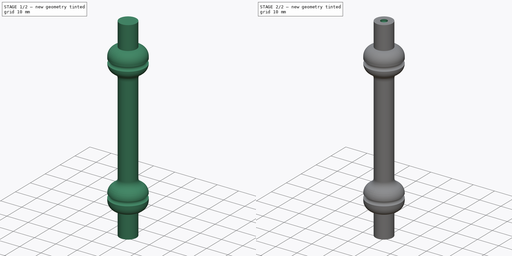
[diagram: build sequence overview — one tinted view per stage of 2, left to right]
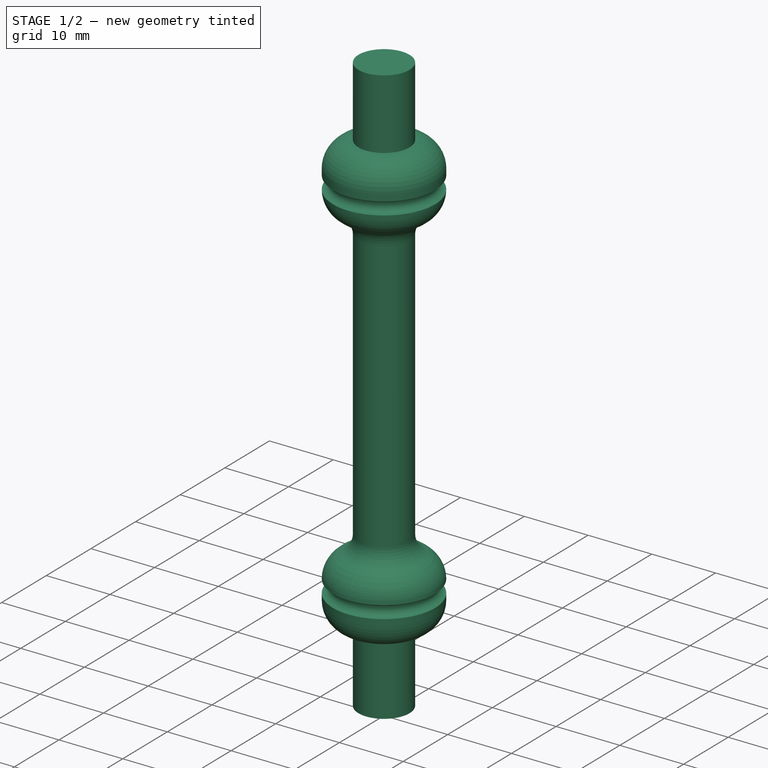
[diagram: stage 1 of 2 — iso view after this stage's code; geometry added in this stage tinted green]
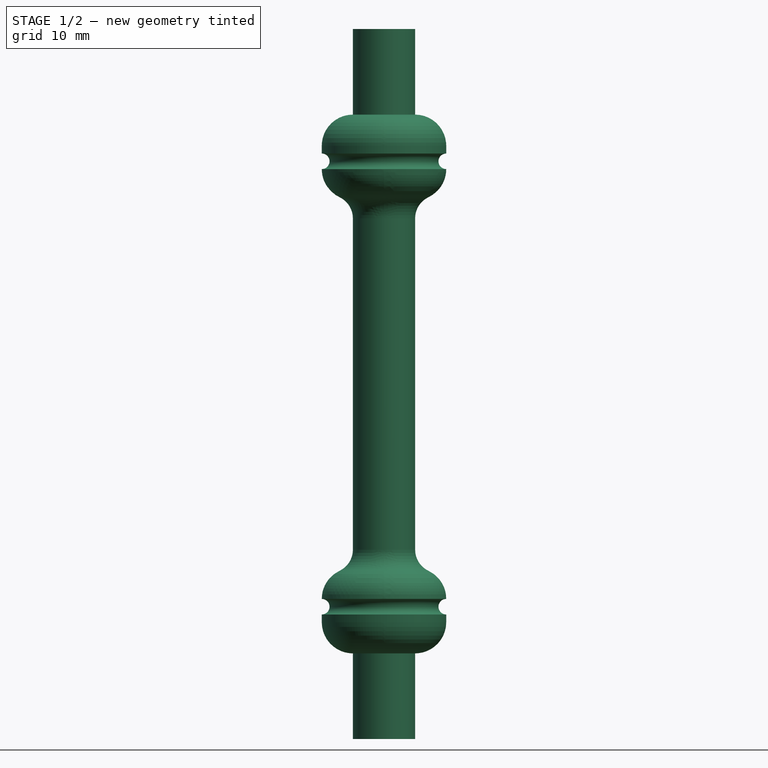
[diagram: stage 1 of 2 — front view after this stage's code; geometry added in this stage tinted green]
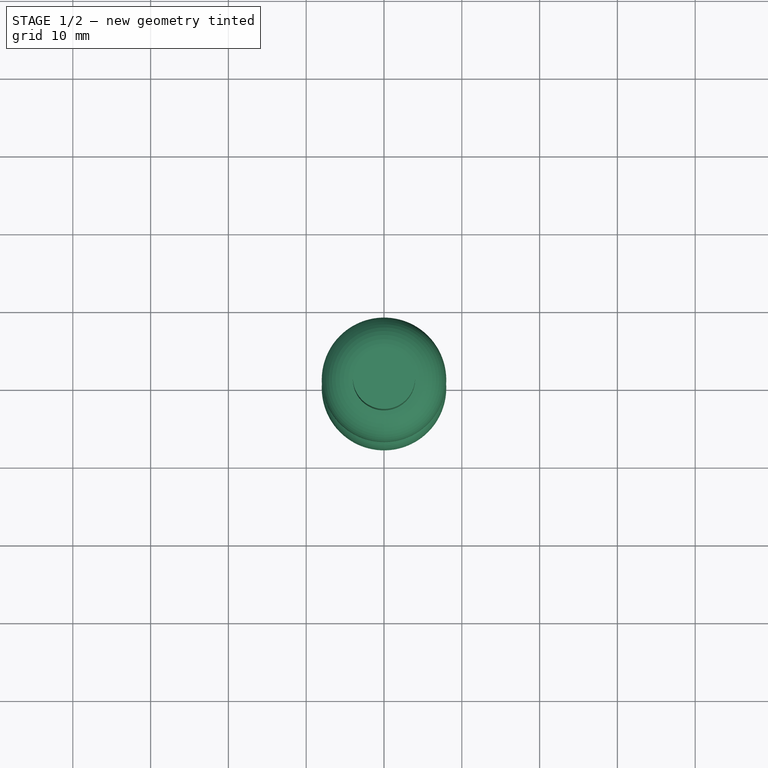
[diagram: stage 1 of 2 — top view after this stage's code; geometry added in this stage tinted green]
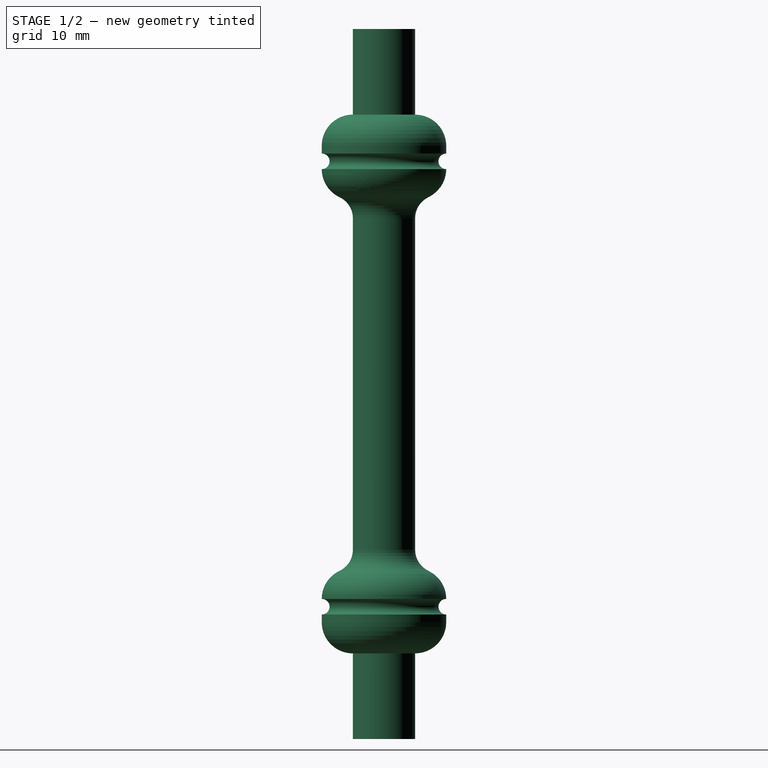
[diagram: stage 1 of 2 — right view after this stage's code; geometry added in this stage tinted green]
FCSTD DOCUMENT  (FreeCAD 0.19R20909 (Git))
Label: roller3bign
License: All rights reserved
LicenseURL: http://en.wikipedia.org/wiki/All_rights_reserved
objects: Sketcher::SketchObject×2, PartDesign::Revolution×1, PartDesign::Fillet×1, PartDesign::Pocket×1, PartDesign::Body×1
note: 9 computed .brp shape members not serialized (recipe doc carries the construction recipe); baked Part::Feature solids carry a one-line shape summary decoded from their .brp

FEATURE [Sketcher::SketchObject] Sketch
  MapMode = 5
  Placement = pos=(0,0,0) rot=(0.57735,0.57735,0.57735;2.0944rad)
  Support = -> [YZ_Plane]
  sketch-geometry (14):
    g0: LineSegment StartX=0 StartY=0 StartZ=0 EndX=-4 EndY=0 EndZ=0
    g1: LineSegment StartX=-4 StartY=0 StartZ=0 EndX=-4 EndY=11 EndZ=0
    g2: ArcOfCircle CenterX=-8 CenterY=17 CenterZ=0 NormalX=0 NormalY=0 NormalZ=1 AngleXU=0 Radius=1 StartAngle=4.71239 EndAngle=7.85398
    g3: ArcOfCircle CenterX=-4 CenterY=18 CenterZ=0 NormalX=0 NormalY=0 NormalZ=1 AngleXU=0 Radius=4 StartAngle=1.5708 EndAngle=3.14159
    g4: LineSegment StartX=-4 StartY=22 StartZ=0 EndX=-4 EndY=69.25 EndZ=0
    g5: LineSegment StartX=0 StartY=91.25 StartZ=0 EndX=-4 EndY=91.25 EndZ=0
    g6: LineSegment StartX=-4 StartY=91.25 StartZ=0 EndX=-4 EndY=80.25 EndZ=0
    g7: ArcOfCircle CenterX=-8 CenterY=74.25 CenterZ=0 NormalX=0 NormalY=0 NormalZ=1 AngleXU=0 Radius=1 StartAngle=4.71239 EndAngle=7.85398
    g8: ArcOfCircle CenterX=-4 CenterY=73.25 CenterZ=0 NormalX=0 NormalY=0 NormalZ=1 AngleXU=0 Radius=4 StartAngle=3.14159 EndAngle=4.71239
    g9: LineSegment StartX=0 StartY=0 StartZ=0 EndX=0 EndY=91.25 EndZ=0
    g10: LineSegment StartX=-8 StartY=75.25 StartZ=0 EndX=-8 EndY=76.25 EndZ=0
    g11: ArcOfCircle CenterX=-4 CenterY=76.25 CenterZ=0 NormalX=0 NormalY=0 NormalZ=1 AngleXU=0 Radius=4 StartAngle=1.5708 EndAngle=3.14159
    g12: LineSegment StartX=-8 StartY=16 StartZ=0 EndX=-8 EndY=15 EndZ=0
    g13: ArcOfCircle CenterX=-4 CenterY=15 CenterZ=0 NormalX=0 NormalY=0 NormalZ=1 AngleXU=0 Radius=4 StartAngle=3.14159 EndAngle=4.71239
  constraints (45):
    c: Coincident(g0,g1)
    c: Perpendicular(g2,g3) = 1.5708
    c: Angle(g3) = 1.5708
    c: DistanceX(g0,g0) = 4
    c: DistanceY(g1,g1) = 11
    c: Coincident(g0,g-1)
    c: Perpendicular(g1,g0)
    c: Radius(g3) = 4
    c: Radius(g2) = 1
    c: DistanceY(g4,g4) = 47.25
    c: Vertical(g4,g3)
    c: Coincident(g4,g3)
    c: Coincident(g5,g6)
    c: Perpendicular(g7,g8) = 4.71239
    c: Angle(g8) = 1.5708
    c: DistanceX(g5,g5) = 4
    c: Perpendicular(g-2,g5)
    c: Vertical(g8,g8)
    c: Radius(g7) = 1
    c: Radius(g8) = 4
    c: Coincident(g8,g4)
    c: DistanceY(g6,g6) = 11
    c: Vertical(g7,g7)
    c: Vertical(g1)
    c: Coincident(g9,g5)
    c: Coincident(g9,g0)
    c: Vertical(g10)
    c: Angle(g11) = 1.5708
    c: Coincident(g6,g11)
    c: Vertical(g4,g6)
    c: Coincident(g10,g11)
    c: Coincident(g10,g7)
    c: DistanceY(g10,g10) = 1
    c: Radius(g11) = 4
    c: PointOnObject(g5,g-2)
    c: Vertical(g12)
    c: Coincident(g12,g2)
    c: DistanceY(g12,g12) = 1
    c: Radius(g13) = 4
    c: Angle(g13) = 1.5708
    c: Coincident(g13,g1)
    c: Coincident(g13,g12)
    c: Vertical(g2,g2)
    c: Vertical(g3,g1)
    c: Angle(g2) = 3.14159
FEATURE [PartDesign::Revolution] Revolution
  Angle = 360
  Axis = (-2e-16,3e-16,1)
  Base = (0,0,0)
  Placement = pos=(0,0,0) rot=(0.57735,0.57735,0.57735;2.0944rad)
  Profile = -> Sketch
  ReferenceAxis = -> Sketch [V_Axis]
FEATURE [PartDesign::Fillet] Fillet
  Base = -> Revolution [Face7]
  BaseFeature = -> Revolution
  Placement = pos=(0,0,0) rot=(0.57735,0.57735,0.57735;2.0944rad)
  Radius = 3
  Refine = true
  SupportTransform = true
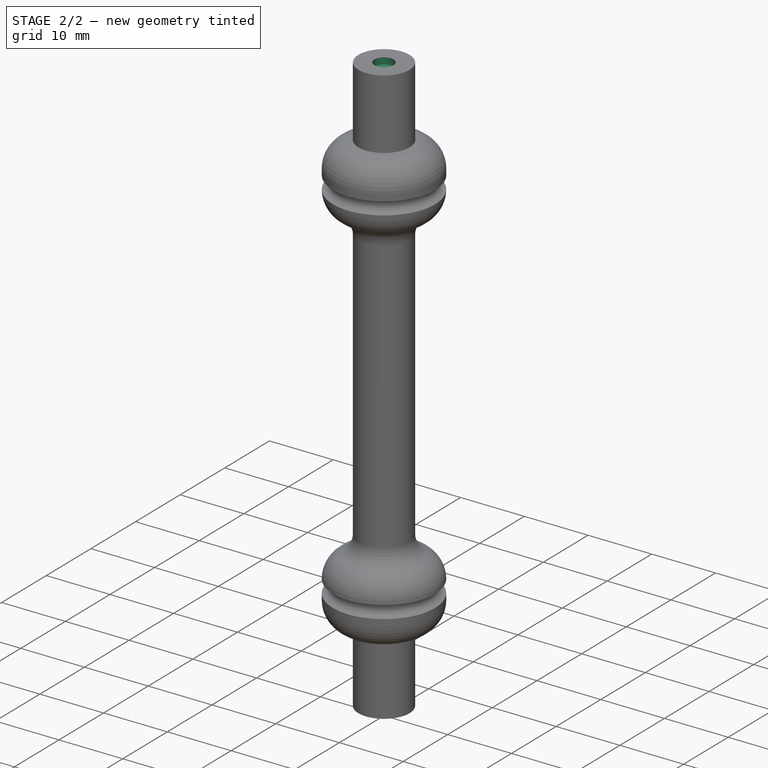
[diagram: stage 2 of 2 — iso view after this stage's code; geometry added in this stage tinted green]
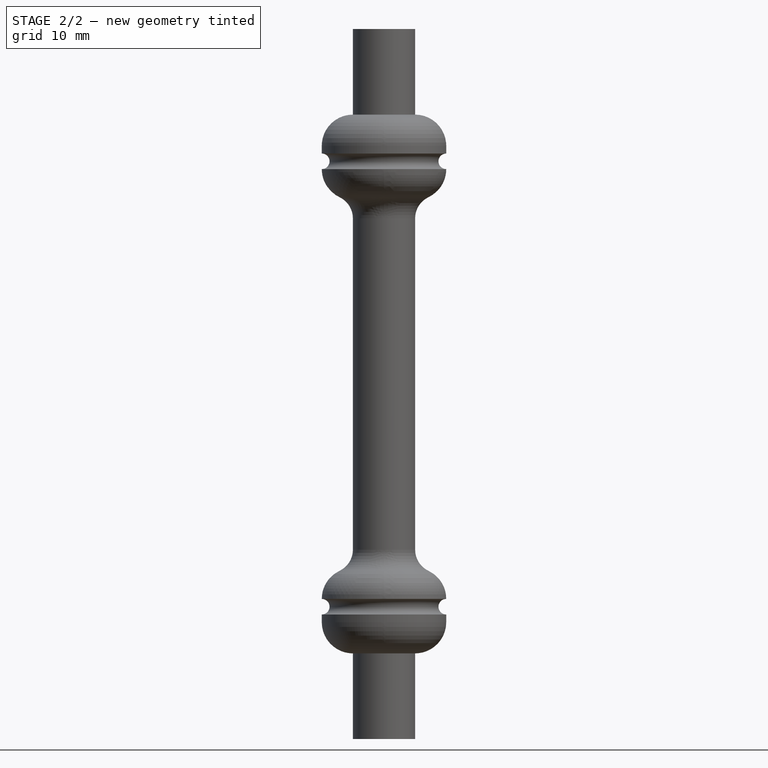
[diagram: stage 2 of 2 — front view after this stage's code; geometry added in this stage tinted green]
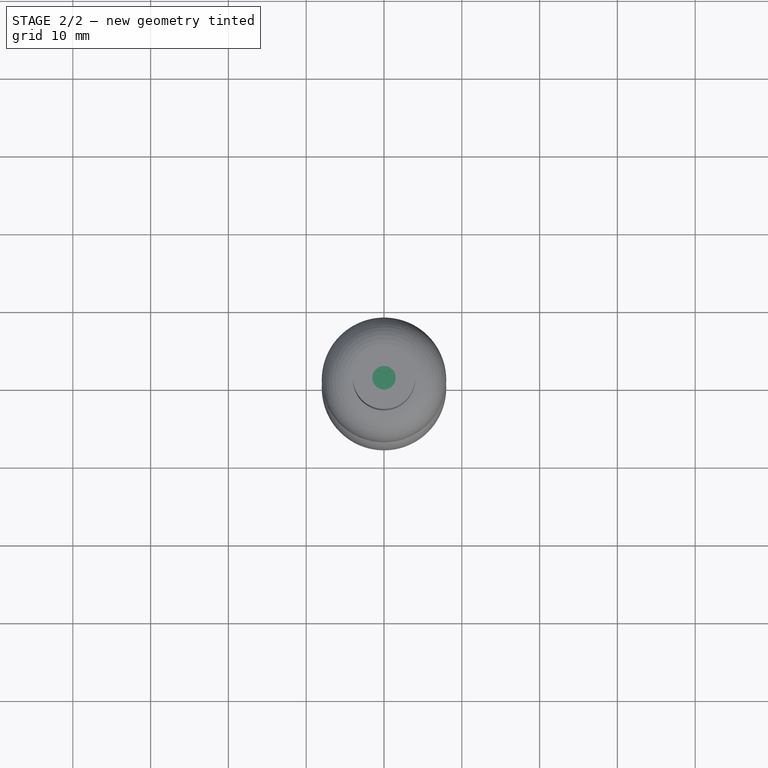
[diagram: stage 2 of 2 — top view after this stage's code; geometry added in this stage tinted green]
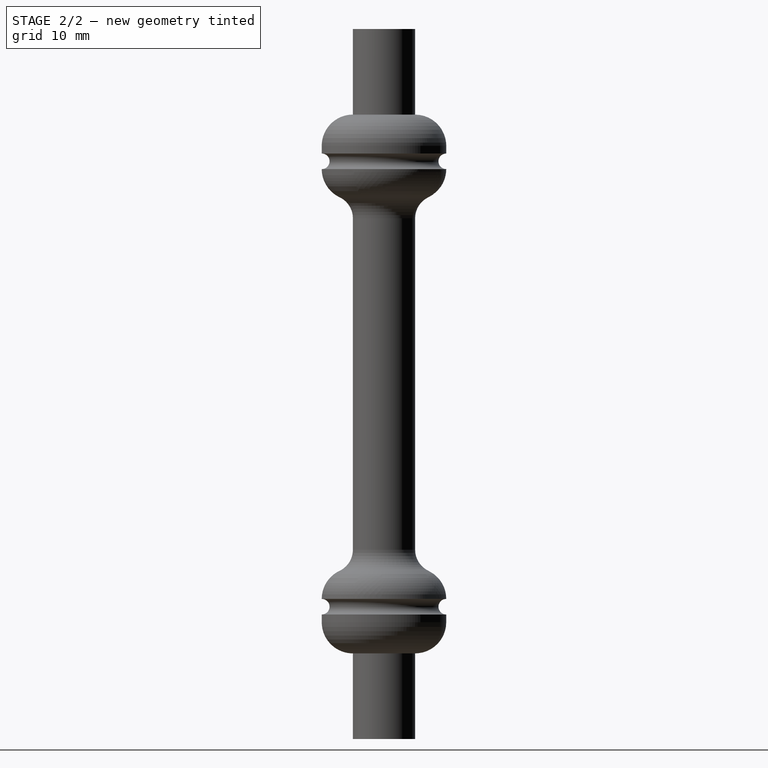
[diagram: stage 2 of 2 — right view after this stage's code; geometry added in this stage tinted green]
FEATURE [Sketcher::SketchObject] Sketch001
  MapMode = 5
  Placement = pos=(-5.07e-14,3.55e-14,91.25) rot=(0,0,-1;1.5708rad)
  Support = -> [Fillet]
  sketch-geometry (1):
    g0: Circle CenterX=0 CenterY=0 CenterZ=0 NormalX=0 NormalY=0 NormalZ=1 AngleXU=0 Radius=1.5
  constraints (2):
    c: Coincident(g0,g-1)
    c: Radius(g0) = 1.5
FEATURE [PartDesign::Pocket] Pocket
  BaseFeature = -> Fillet
  Length = 1
  Length2 = 100
  Placement = pos=(0,0,0) rot=(0.57735,0.57735,0.57735;2.0944rad)
  Profile = -> Sketch001
  Refine = true
  Type = 0
FEATURE [PartDesign::Body] Body
  Group = -> [Sketch,Revolution,Fillet,Sketch001,Pocket]
  Origin = -> Origin
  Tip = -> Pocket
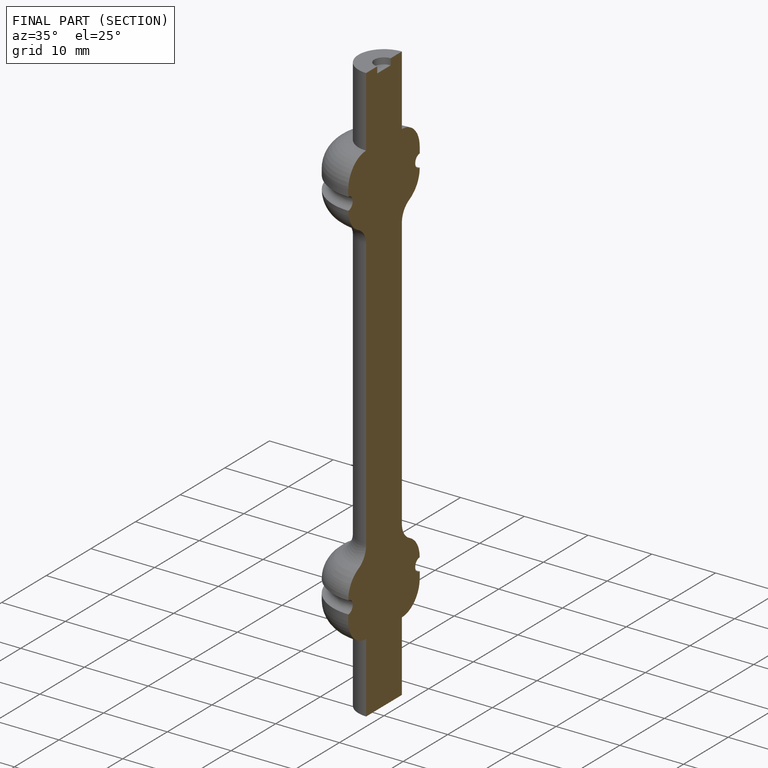
[diagram: finished part — half-section view (interior)]
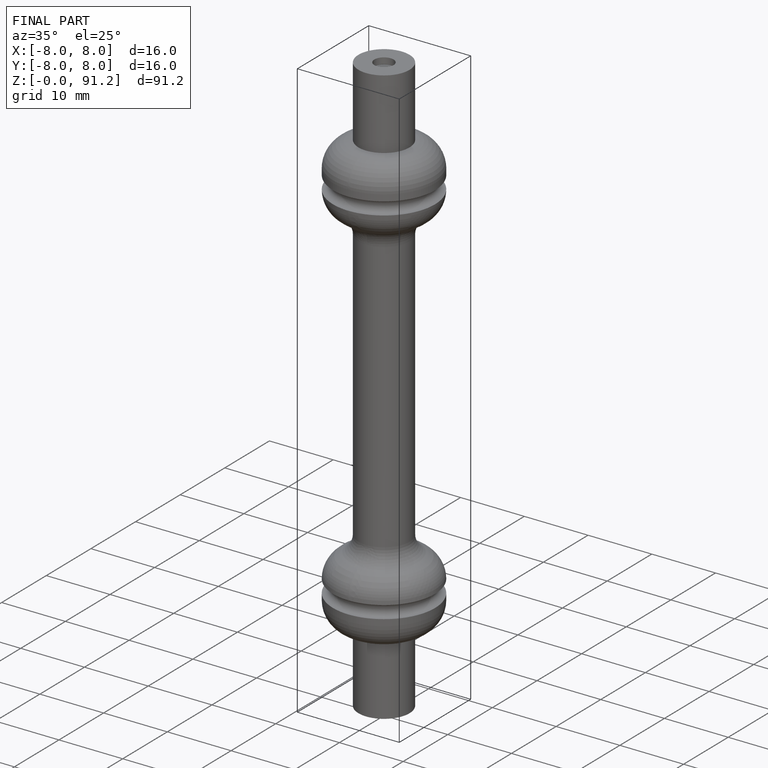
[diagram: finished part — iso view with bounding-box wireframe]
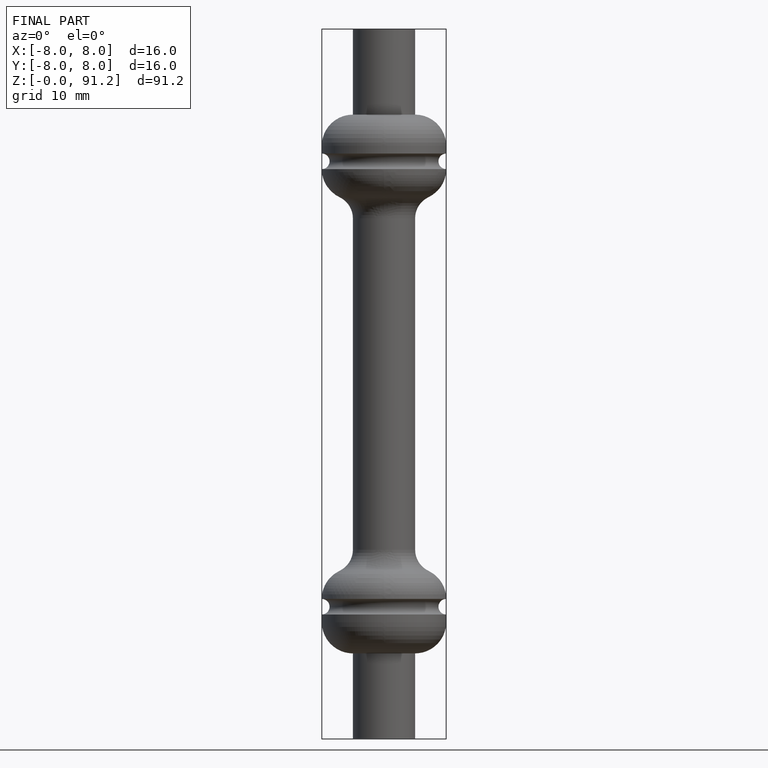
[diagram: finished part — front view with bounding-box wireframe]
